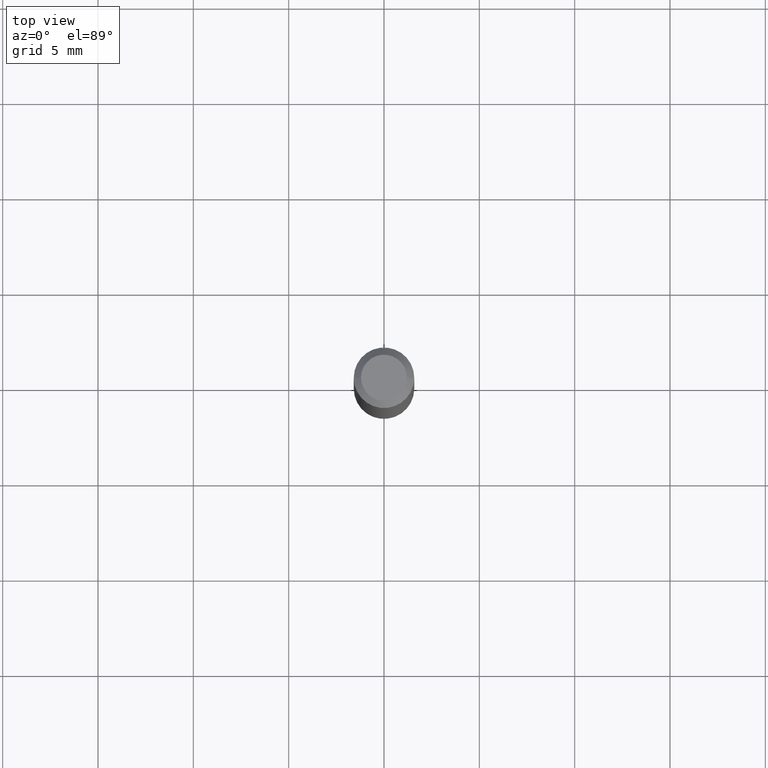
[diagram: clean part render]
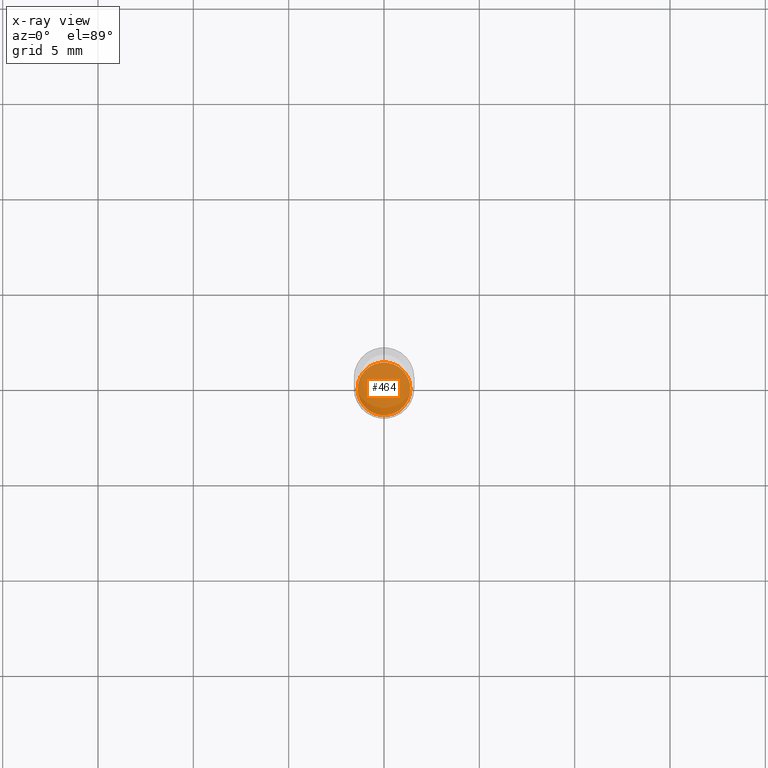
[diagram: x-ray — body ghosted, one internal face saturated and labeled with its STEP entity id]
A machine part, top view, then the same camera in x-ray: the body is ghosted and one INTERNAL B-rep face — a face not visible from any outside direction — is saturated and labeled: STEP entity #464.
In plain terms, the highlighted planar face has unit normal (-0, 0, 1).
Its self-contained STEP definition (entity closure, byte-faithful):
#4 = DIRECTION ( 'NONE',  ( 1.000000000000000000, -6.982962677686273810E-15, 0.000000000000000000 ) ) ;
#48 = DIRECTION ( 'NONE',  ( 1.000000000000000000, -6.982962677686265922E-15, 4.876176775795935793E-29 ) ) ;
#76 = VERTEX_POINT ( 'NONE', #91 ) ;
#91 = CARTESIAN_POINT ( 'NONE',  ( 0.05449999999999997208, -5.041699053289501100E-15, -1.335000000000000187 ) ) ;
#105 = EDGE_CURVE ( 'NONE', #76, #231, #376, .T. ) ;
#106 = AXIS2_PLACEMENT_3D ( 'NONE', #233, #370, #120 ) ;
#120 = DIRECTION ( 'NONE',  ( 1.000000000000000000, -6.982962677686273810E-15, 0.000000000000000000 ) ) ;
#129 = CIRCLE ( 'NONE', #328, 0.05449999999999997208 ) ;
#130 = EDGE_CURVE ( 'NONE', #231, #76, #129, .T. ) ;
#200 = PLANE ( 'NONE',  #489 ) ;
#231 = VERTEX_POINT ( 'NONE', #500 ) ;
#233 = CARTESIAN_POINT ( 'NONE',  ( 3.264700856257157760E-29, -4.661127587355599122E-15, -1.335000000000000187 ) ) ;
#247 = FACE_OUTER_BOUND ( 'NONE', #289, .T. ) ;
#289 = EDGE_LOOP ( 'NONE', ( #476, #344 ) ) ;
#325 = DIRECTION ( 'NONE',  ( -2.438088387897960049E-29, 3.491481338843145188E-15, 1.000000000000000000 ) ) ;
#328 = AXIS2_PLACEMENT_3D ( 'NONE', #364, #517, #4 ) ;
#344 = ORIENTED_EDGE ( 'NONE', *, *, #130, .F. ) ;
#364 = CARTESIAN_POINT ( 'NONE',  ( 3.264700856257157760E-29, -4.661127587355599122E-15, -1.335000000000000187 ) ) ;
#370 = DIRECTION ( 'NONE',  ( -2.445468806185136597E-29, 3.491481338843145583E-15, 1.000000000000000000 ) ) ;
#376 = CIRCLE ( 'NONE', #106, 0.05449999999999997208 ) ;
#448 = CARTESIAN_POINT ( 'NONE',  ( 3.264700856257157760E-29, -4.661127587355599122E-15, -1.335000000000000187 ) ) ;
#464 = ADVANCED_FACE ( 'NONE', ( #247 ), #200, .F. ) ;
#476 = ORIENTED_EDGE ( 'NONE', *, *, #105, .F. ) ;
#489 = AXIS2_PLACEMENT_3D ( 'NONE', #448, #325, #48 ) ;
#500 = CARTESIAN_POINT ( 'NONE',  ( -0.05449999999999997208, -4.271232569192233370E-15, -1.335000000000000187 ) ) ;
#517 = DIRECTION ( 'NONE',  ( -2.445468806185136597E-29, 3.491481338843145583E-15, 1.000000000000000000 ) ) ;